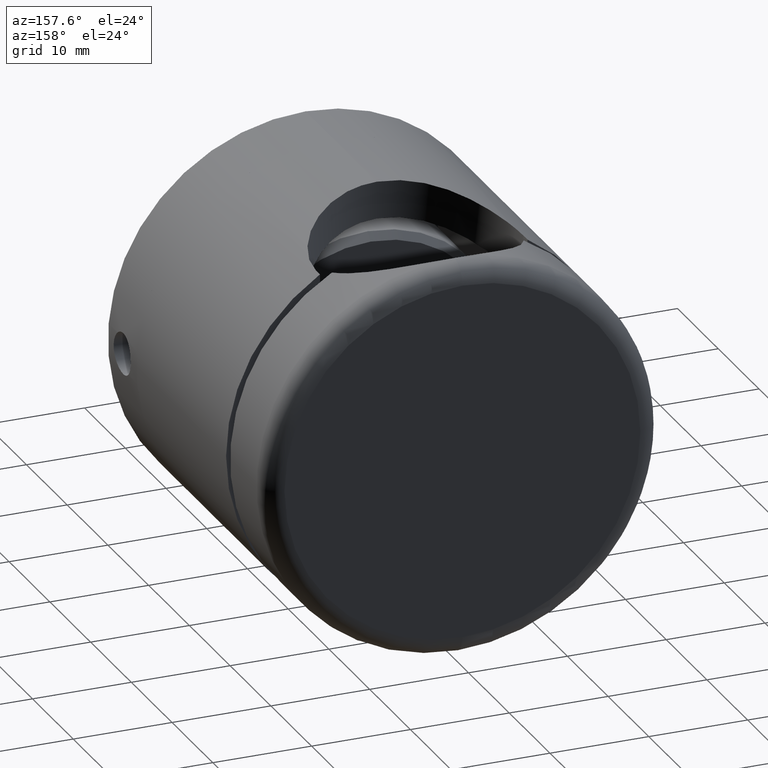
[diagram: clean part render]
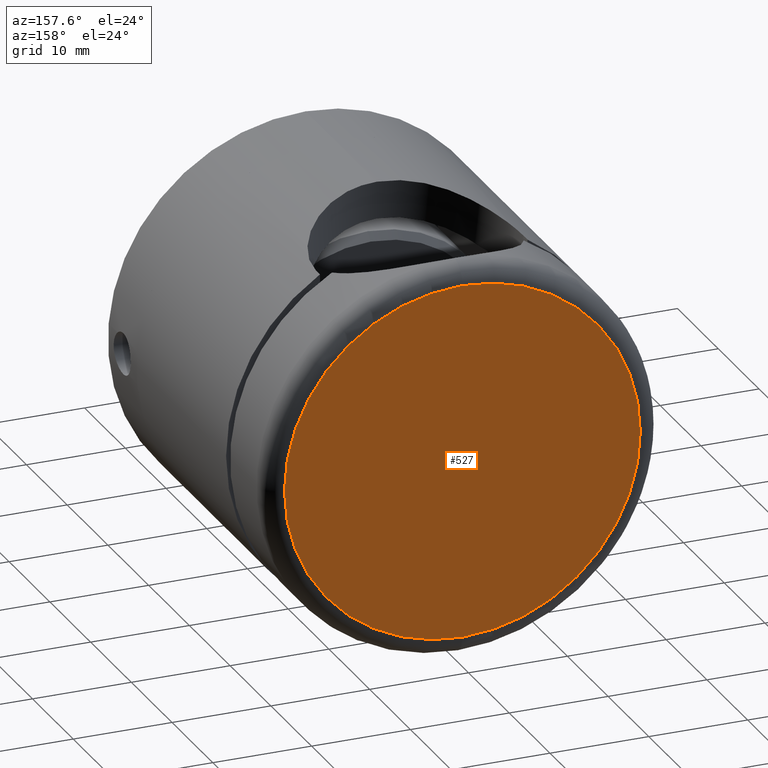
[diagram: same view with one face highlighted and labeled with its STEP entity id]
A machine part, auxiliary view. The second image highlights one B-rep face of the part: STEP entity #527.
In plain terms, the highlighted planar face has unit normal (0, 1, 0).
Its self-contained STEP definition (entity closure, byte-faithful):
#527 = ADVANCED_FACE ( 'NONE', ( #3192 ), #5927, .T. ) ;
#782 = ORIENTED_EDGE ( 'NONE', *, *, #7554, .T. ) ;
#2210 = EDGE_CURVE ( 'NONE', #9567, #5831, #4138, .T. ) ;
#2268 = DIRECTION ( 'NONE',  ( 0.000000000000000000, -1.000000000000000000, 0.000000000000000000 ) ) ;
#2855 = CARTESIAN_POINT ( 'NONE',  ( 0.000000000000000000, 1.500000000000000000, 0.000000000000000000 ) ) ;
#3192 = FACE_OUTER_BOUND ( 'NONE', #8953, .T. ) ;
#4138 = CIRCLE ( 'NONE', #13663, 18.00000000000000355 ) ;
#5634 = ORIENTED_EDGE ( 'NONE', *, *, #2210, .T. ) ;
#5831 = VERTEX_POINT ( 'NONE', #6346 ) ;
#5927 = PLANE ( 'NONE',  #12993 ) ;
#6273 = DIRECTION ( 'NONE',  ( 0.000000000000000000, 0.000000000000000000, -1.000000000000000000 ) ) ;
#6346 = CARTESIAN_POINT ( 'NONE',  ( 2.326828918379971365E-15, 1.500000000000000000, 18.00000000000000355 ) ) ;
#6870 = AXIS2_PLACEMENT_3D ( 'NONE', #2855, #11727, #11791 ) ;
#7554 = EDGE_CURVE ( 'NONE', #5831, #9567, #11058, .T. ) ;
#8870 = DIRECTION ( 'NONE',  ( 0.000000000000000000, -1.000000000000000000, 0.000000000000000000 ) ) ;
#8953 = EDGE_LOOP ( 'NONE', ( #5634, #782 ) ) ;
#9164 = CARTESIAN_POINT ( 'NONE',  ( 0.000000000000000000, 1.500000000000000000, -18.00000000000000355 ) ) ;
#9567 = VERTEX_POINT ( 'NONE', #9164 ) ;
#9877 = CARTESIAN_POINT ( 'NONE',  ( 0.000000000000000000, 1.500000000000000000, 0.000000000000000000 ) ) ;
#11058 = CIRCLE ( 'NONE', #6870, 18.00000000000000355 ) ;
#11727 = DIRECTION ( 'NONE',  ( 0.000000000000000000, -1.000000000000000000, 0.000000000000000000 ) ) ;
#11791 = DIRECTION ( 'NONE',  ( 0.000000000000000000, 0.000000000000000000, -1.000000000000000000 ) ) ;
#12483 = DIRECTION ( 'NONE',  ( 0.000000000000000000, -0.000000000000000000, -1.000000000000000000 ) ) ;
#12993 = AXIS2_PLACEMENT_3D ( 'NONE', #9877, #2268, #12483 ) ;
#13663 = AXIS2_PLACEMENT_3D ( 'NONE', #13739, #8870, #6273 ) ;
#13739 = CARTESIAN_POINT ( 'NONE',  ( 0.000000000000000000, 1.500000000000000000, 0.000000000000000000 ) ) ;